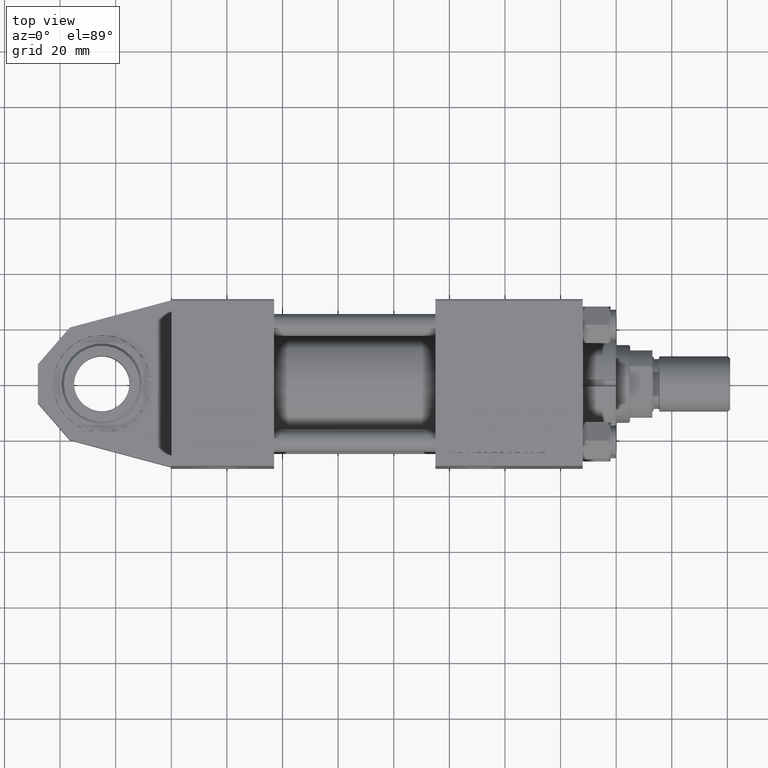
[diagram: clean part render]
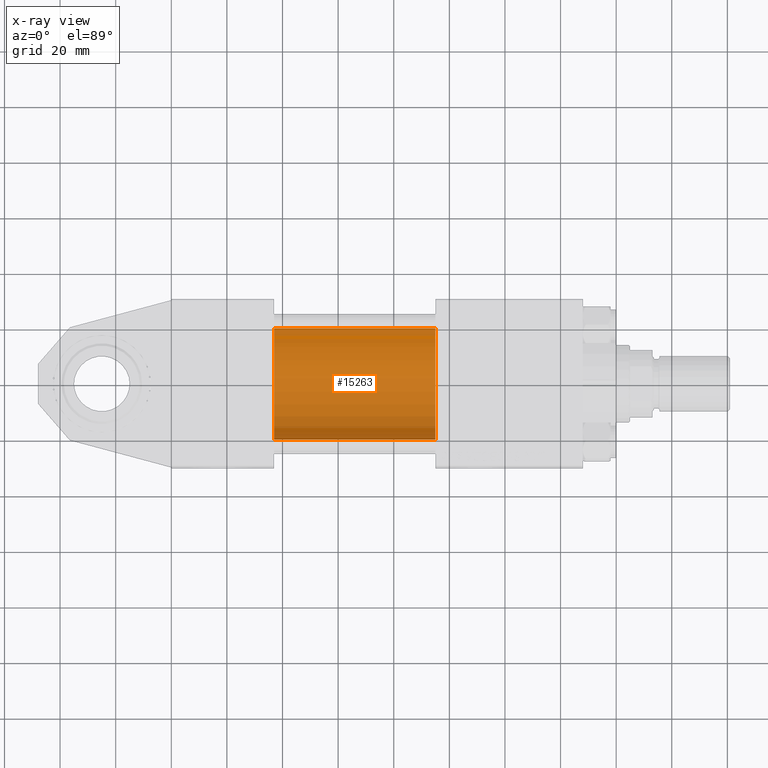
[diagram: x-ray — body ghosted, one internal face saturated and labeled with its STEP entity id]
A machine part, top view, then the same camera in x-ray: the body is ghosted and one INTERNAL B-rep face — a face not visible from any outside direction — is saturated and labeled: STEP entity #15263.
In plain terms, the highlighted cylindrical surface (partial cylindrical patch) has radius 20 mm, axis along (-1, 0, -0).
Its self-contained STEP definition (entity closure, byte-faithful):
#424 = FACE_OUTER_BOUND ( 'NONE', #28477, .T. ) ;
#1158 = AXIS2_PLACEMENT_3D ( 'NONE', #48792, #40553, #33384 ) ;
#1559 = ORIENTED_EDGE ( 'NONE', *, *, #43928, .T. ) ;
#4989 = EDGE_CURVE ( 'NONE', #28566, #15719, #35170, .T. ) ;
#6316 = ORIENTED_EDGE ( 'NONE', *, *, #4989, .T. ) ;
#6645 = DIRECTION ( 'NONE',  ( 0.000000000000000000, 0.000000000000000000, -1.000000000000000000 ) ) ;
#10803 = CARTESIAN_POINT ( 'NONE',  ( 95.00000000000000000, -2.602085213965210642E-15, 20.00000000000000000 ) ) ;
#11247 = DIRECTION ( 'NONE',  ( 1.000000000000000000, 0.000000000000000000, 0.000000000000000000 ) ) ;
#15263 = ADVANCED_FACE ( 'NONE', ( #424 ), #24774, .F. ) ;
#15719 = VERTEX_POINT ( 'NONE', #29371 ) ;
#17582 = VECTOR ( 'NONE', #43636, 1000.000000000000000 ) ;
#19359 = ORIENTED_EDGE ( 'NONE', *, *, #25416, .F. ) ;
#20118 = CIRCLE ( 'NONE', #21795, 20.00000000000000000 ) ;
#20502 = CARTESIAN_POINT ( 'NONE',  ( 95.00000000000000000, -1.527916156705046464E-16, -20.00000000000000000 ) ) ;
#20936 = DIRECTION ( 'NONE',  ( -1.000000000000000000, -0.000000000000000000, -0.000000000000000000 ) ) ;
#21795 = AXIS2_PLACEMENT_3D ( 'NONE', #38717, #11247, #6645 ) ;
#22358 = LINE ( 'NONE', #10803, #25733 ) ;
#24298 = EDGE_CURVE ( 'NONE', #47400, #24382, #22358, .T. ) ;
#24382 = VERTEX_POINT ( 'NONE', #38030 ) ;
#24774 = CYLINDRICAL_SURFACE ( 'NONE', #26328, 20.00000000000000000 ) ;
#25416 = EDGE_CURVE ( 'NONE', #24382, #15719, #50361, .T. ) ;
#25733 = VECTOR ( 'NONE', #45759, 1000.000000000000000 ) ;
#26328 = AXIS2_PLACEMENT_3D ( 'NONE', #40449, #20936, #31485 ) ;
#28477 = EDGE_LOOP ( 'NONE', ( #1559, #6316, #19359, #40528 ) ) ;
#28566 = VERTEX_POINT ( 'NONE', #49138 ) ;
#29371 = CARTESIAN_POINT ( 'NONE',  ( 37.00000000000000000, -1.527916156705046464E-16, -20.00000000000000000 ) ) ;
#31485 = DIRECTION ( 'NONE',  ( 0.000000000000000000, 0.000000000000000000, 1.000000000000000000 ) ) ;
#33384 = DIRECTION ( 'NONE',  ( 0.000000000000000000, 0.000000000000000000, -1.000000000000000000 ) ) ;
#35170 = LINE ( 'NONE', #20502, #17582 ) ;
#37655 = CARTESIAN_POINT ( 'NONE',  ( 95.00000000000000000, -2.602085213965210642E-15, 20.00000000000000000 ) ) ;
#38030 = CARTESIAN_POINT ( 'NONE',  ( 37.00000000000000000, -2.602085213965210642E-15, 20.00000000000000000 ) ) ;
#38717 = CARTESIAN_POINT ( 'NONE',  ( 95.00000000000000000, -2.602085213965210642E-15, 0.000000000000000000 ) ) ;
#40449 = CARTESIAN_POINT ( 'NONE',  ( 95.00000000000000000, -2.602085213965210642E-15, 0.000000000000000000 ) ) ;
#40528 = ORIENTED_EDGE ( 'NONE', *, *, #24298, .F. ) ;
#40553 = DIRECTION ( 'NONE',  ( 1.000000000000000000, 0.000000000000000000, 0.000000000000000000 ) ) ;
#43636 = DIRECTION ( 'NONE',  ( -1.000000000000000000, -0.000000000000000000, -0.000000000000000000 ) ) ;
#43928 = EDGE_CURVE ( 'NONE', #47400, #28566, #20118, .T. ) ;
#45759 = DIRECTION ( 'NONE',  ( -1.000000000000000000, -0.000000000000000000, -0.000000000000000000 ) ) ;
#47400 = VERTEX_POINT ( 'NONE', #37655 ) ;
#48792 = CARTESIAN_POINT ( 'NONE',  ( 37.00000000000000000, -2.602085213965210642E-15, 0.000000000000000000 ) ) ;
#49138 = CARTESIAN_POINT ( 'NONE',  ( 95.00000000000000000, -1.527916156705046464E-16, -20.00000000000000000 ) ) ;
#50361 = CIRCLE ( 'NONE', #1158, 20.00000000000000000 ) ;